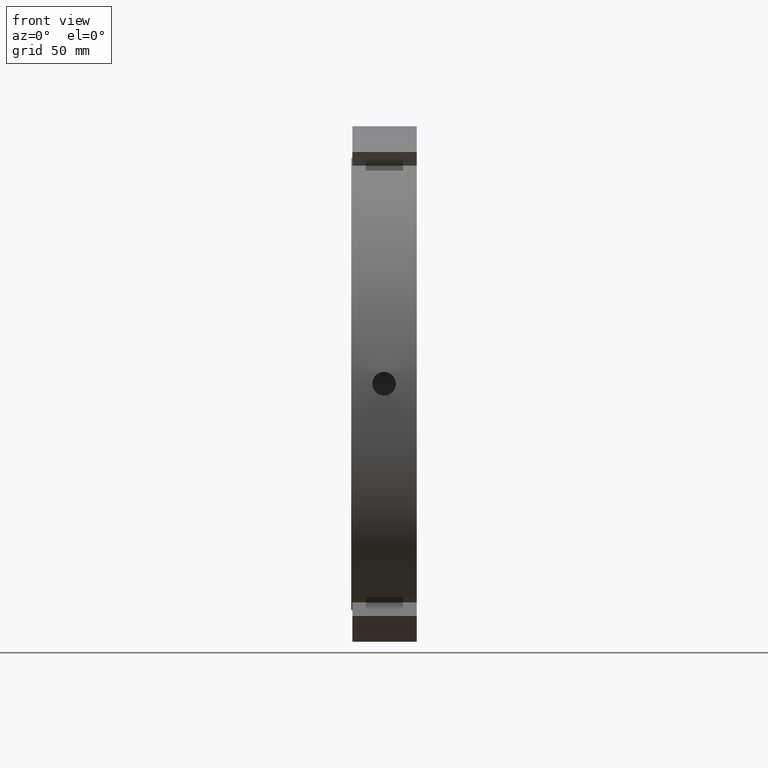
[diagram: clean part render]
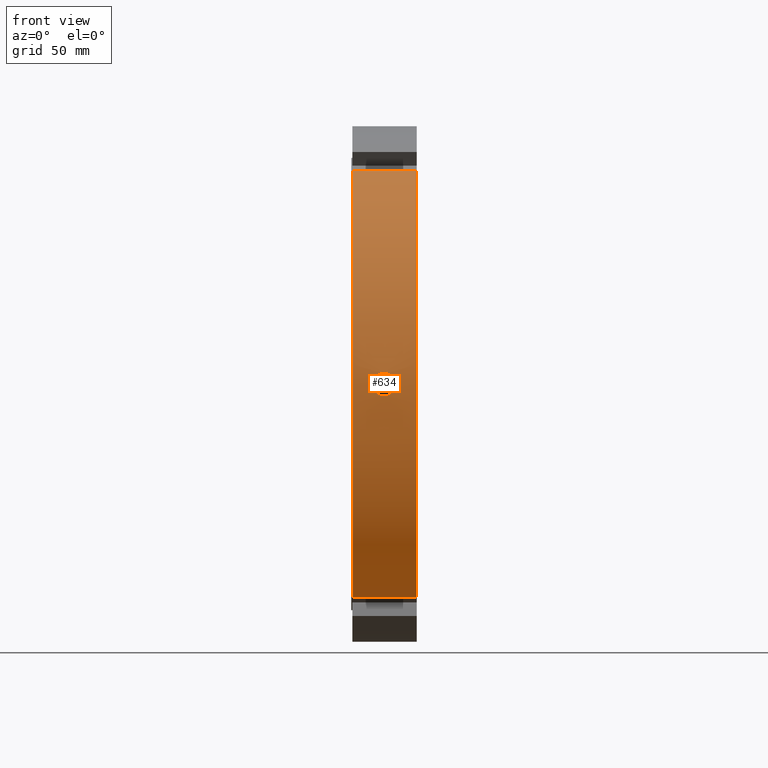
[diagram: same view with one face highlighted and labeled with its STEP entity id]
A machine part, front view. The second image highlights one B-rep face of the part: STEP entity #634.
In plain terms, the highlighted cylindrical surface (partial cylindrical patch) has radius 110 mm, axis along (1, 0, 0).
Its self-contained STEP definition (entity closure, byte-faithful):
#75=CARTESIAN_POINT('',(0.499999999999967,-61.782555837885482,-91.010525732678673));
#76=VERTEX_POINT('',#75);
#91=CARTESIAN_POINT('',(27.999999999999979,-61.782555837885482,-91.010525732678673));
#92=VERTEX_POINT('',#91);
#99=CARTESIAN_POINT('',(0.499999999999968,-61.782555837885482,-91.010525732678659));
#100=DIRECTION('',(1.0,0.0,0.0));
#101=VECTOR('',#100,27.500000000000011);
#102=LINE('',#99,#101);
#103=EDGE_CURVE('',#76,#92,#102,.T.);
#303=CARTESIAN_POINT('',(0.499999999999967,-61.782555837885404,91.010525732678715));
#304=VERTEX_POINT('',#303);
#313=CARTESIAN_POINT('',(27.999999999999979,-61.782555837885404,91.010525732678715));
#314=VERTEX_POINT('',#313);
#315=CARTESIAN_POINT('',(27.999999999999979,-61.782555837885411,91.010525732678715));
#316=DIRECTION('',(-1.0,0.0,0.0));
#317=VECTOR('',#316,27.500000000000011);
#318=LINE('',#315,#317);
#319=EDGE_CURVE('',#314,#304,#318,.T.);
#499=CARTESIAN_POINT('',(27.999999999999979,0.0,0.0));
#500=DIRECTION('',(1.0,0.0,0.0));
#501=DIRECTION('',(0.0,1.0,0.0));
#502=AXIS2_PLACEMENT_3D('',#499,#500,#501);
#503=CIRCLE('',#502,110.0);
#504=EDGE_CURVE('',#314,#92,#503,.T.);
#576=CARTESIAN_POINT('',(14.249999999999973,0.0,0.0));
#577=DIRECTION('',(1.0,0.0,0.0));
#578=DIRECTION('',(0.0,1.0,0.0));
#579=AXIS2_PLACEMENT_3D('',#576,#577,#578);
#580=CYLINDRICAL_SURFACE('',#579,110.0);
#581=ORIENTED_EDGE('',*,*,#103,.T.);
#582=ORIENTED_EDGE('',*,*,#504,.F.);
#583=ORIENTED_EDGE('',*,*,#319,.T.);
#584=CARTESIAN_POINT('',(0.499999999999967,0.0,0.0));
#585=DIRECTION('',(1.0,0.0,0.0));
#586=DIRECTION('',(0.0,1.0,0.0));
#587=AXIS2_PLACEMENT_3D('',#584,#585,#586);
#588=CIRCLE('',#587,110.0);
#589=EDGE_CURVE('',#304,#76,#588,.T.);
#590=ORIENTED_EDGE('',*,*,#589,.T.);
#591=EDGE_LOOP('',(#581,#582,#583,#590));
#592=FACE_OUTER_BOUND('',#591,.T.);
#593=CARTESIAN_POINT('',(13.999999999999979,-109.883880487540110,5.053000000000000));
#594=VERTEX_POINT('',#593);
#595=CARTESIAN_POINT('',(13.999999999999979,-109.883880487540130,5.052999999999999));
#596=CARTESIAN_POINT('',(14.634561778216643,-109.883880487540130,5.052999999999999));
#597=CARTESIAN_POINT('',(15.311359139751751,-109.889942725304610,4.926164402292235));
#598=CARTESIAN_POINT('',(16.556287499265132,-109.911848565222230,4.410459477660360));
#599=CARTESIAN_POINT('',(17.124426060760282,-109.927376998117690,4.021595069910946));
#600=CARTESIAN_POINT('',(18.021595002424153,-109.956534148276720,3.124426128247073));
#601=CARTESIAN_POINT('',(18.410459459980771,-109.972055430179780,2.556287535665462));
#602=CARTESIAN_POINT('',(18.926164429839833,-109.993944919101440,1.311359079529658));
#603=CARTESIAN_POINT('',(19.052999999999976,-110.0,0.634561682750764));
#604=CARTESIAN_POINT('',(19.052999999999976,-110.0,-0.634561682750763));
#605=CARTESIAN_POINT('',(18.926164429839837,-109.993944919101440,-1.311359079529654));
#606=CARTESIAN_POINT('',(18.410459459980775,-109.972055430179780,-2.556287535665459));
#607=CARTESIAN_POINT('',(18.021595002424156,-109.956534148276720,-3.124426128247072));
#608=CARTESIAN_POINT('',(17.124426060760282,-109.927376998117690,-4.021595069910946));
#609=CARTESIAN_POINT('',(16.556287499265132,-109.911848565222230,-4.410459477660360));
#610=CARTESIAN_POINT('',(15.311359139751753,-109.889942725304610,-4.926164402292235));
#611=CARTESIAN_POINT('',(14.634561778216643,-109.883880487540110,-5.053000000000000));
#612=CARTESIAN_POINT('',(13.365438221783315,-109.883880487540110,-5.053000000000000));
#613=CARTESIAN_POINT('',(12.688640860248206,-109.889942725304610,-4.926164402292235));
#614=CARTESIAN_POINT('',(11.443712500734826,-109.911848565222230,-4.410459477660360));
#615=CARTESIAN_POINT('',(10.875573939239676,-109.927376998117690,-4.021595069910947));
#616=CARTESIAN_POINT('',(9.978404997575803,-109.956534148276720,-3.124426128247073));
#617=CARTESIAN_POINT('',(9.589540540019183,-109.972055430179780,-2.556287535665460));
#618=CARTESIAN_POINT('',(9.073835570160121,-109.993944919101440,-1.311359079529656));
#619=CARTESIAN_POINT('',(8.946999999999980,-110.0,-0.634561682750764));
#620=CARTESIAN_POINT('',(8.946999999999980,-110.0,0.634561682750762));
#621=CARTESIAN_POINT('',(9.073835570160121,-109.993944919101440,1.311359079529654));
#622=CARTESIAN_POINT('',(9.589540540019183,-109.972055430179780,2.556287535665459));
#623=CARTESIAN_POINT('',(9.978404997575801,-109.956534148276720,3.124426128247072));
#624=CARTESIAN_POINT('',(10.875573939239676,-109.927376998117690,4.021595069910945));
#625=CARTESIAN_POINT('',(11.443712500734824,-109.911848565222230,4.410459477660360));
#626=CARTESIAN_POINT('',(12.688640860248208,-109.889942725304610,4.926164402292235));
#627=CARTESIAN_POINT('',(13.365438221783315,-109.883880487540110,5.053000000000000));
#628=CARTESIAN_POINT('',(13.999999999999979,-109.883880487540110,5.053000000000000));
#629=B_SPLINE_CURVE_WITH_KNOTS('',3,(#595,#596,#597,#598,#599,#600,#601,#602,#603,#604,#605,#606,#607,#608,#609,#610,#611,#612,#613,#614,#615,#616,#617,#618,#619,#620,#621,#622,#623,#624,#625,#626,#627,#628),.UNSPECIFIED.,.T.,.U.,(4,2,2,2,2,2,2,2,2,2,2,2,2,2,2,2,4),(0.0,0.190368533465000,0.380737066929999,0.571105571755228,0.761474076580457,0.951842581405686,1.142211086230915,1.332579619695915,1.522948153160915,1.713316686625914,1.903685220090914,2.094053724916143,2.284422229741372,2.474790734566601,2.665159239391830,2.855527772856830,3.045896306321830),.UNSPECIFIED.);
#630=EDGE_CURVE('',#594,#594,#629,.T.);
#631=ORIENTED_EDGE('',*,*,#630,.T.);
#632=EDGE_LOOP('',(#631));
#633=FACE_BOUND('',#632,.T.);
#634=ADVANCED_FACE('',(#592,#633),#580,.T.);